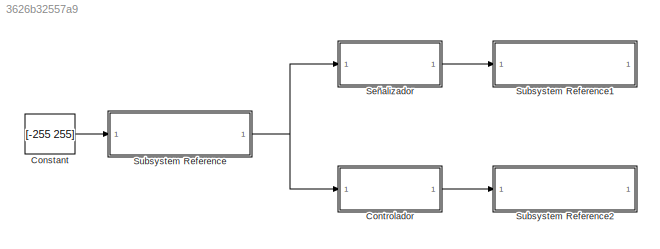
MODEL slx_3626b32557a9
KIND model
CONFIG AbsTol = auto
CONFIG EnableMultiTasking = on
CONFIG FixedStep = auto
CONFIG MaxStep = auto
CONFIG MinStep = auto
CONFIG RelTol = 1e-3
CONFIG SampleTimeConstraint = Unconstrained
CONFIG SolverName = FixedStepAuto
CONFIG StartTime = 0.0
CONFIG StopTime = inf
BLOCK [Constant] Constant
  OutDataTypeStr = int16
  Value = [-255 255]
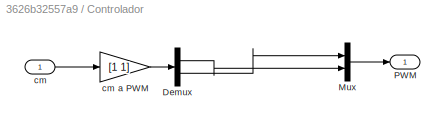
BLOCK [SubSystem] Controlador
BLOCK [Demux] Controlador/Demux
  Outputs = 2
BLOCK [Mux] Controlador/Mux
  DisplayOption = bar
  Inputs = 2
BLOCK [Outport] Controlador/PWM
BLOCK [Inport] Controlador/cm
BLOCK [Gain] Controlador/cm a PWM
  Gain = [1 1]
  OutDataTypeStr = int16
  ParamDataTypeStr = int16
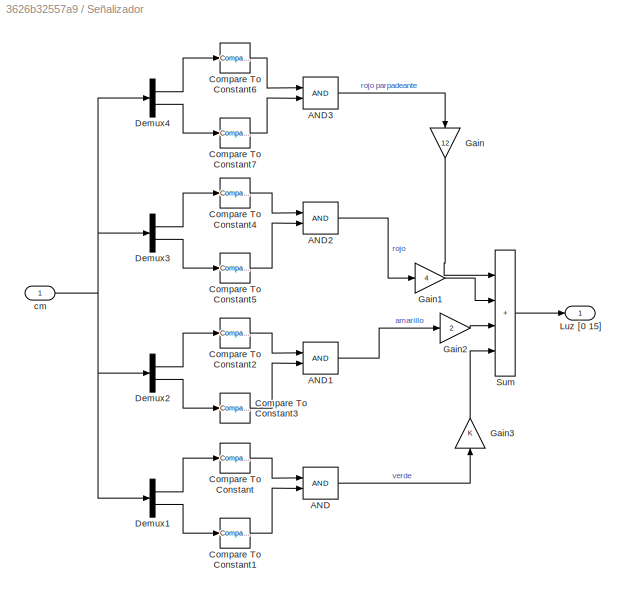
BLOCK [SubSystem] Señalizador
BLOCK [Logic] Señalizador/AND
  AllPortsSameDT = off
  IconShape = distinctive
  OutDataTypeStr = boolean
BLOCK [Logic] Señalizador/AND1
  AllPortsSameDT = off
  IconShape = distinctive
  OutDataTypeStr = boolean
BLOCK [Logic] Señalizador/AND2
  AllPortsSameDT = off
  IconShape = distinctive
  OutDataTypeStr = boolean
BLOCK [Logic] Señalizador/AND3
  AllPortsSameDT = off
  IconShape = distinctive
  OutDataTypeStr = boolean
BLOCK [Reference] Señalizador/Compare To Constant  REF=simulink/Logic and Bit
Operations/Compare
To Constant
  SourceBlock = simulink/Logic and Bit\nOperations/Compare\nTo Constant
  SourceType = Compare To Constant
BLOCK [Reference] Señalizador/Compare To Constant1  REF=simulink/Logic and Bit
Operations/Compare
To Constant
  SourceBlock = simulink/Logic and Bit\nOperations/Compare\nTo Constant
  SourceType = Compare To Constant
BLOCK [Reference] Señalizador/Compare To Constant2  REF=simulink/Logic and Bit
Operations/Compare
To Constant
  SourceBlock = simulink/Logic and Bit\nOperations/Compare\nTo Constant
  SourceType = Compare To Constant
BLOCK [Reference] Señalizador/Compare To Constant3  REF=simulink/Logic and Bit
Operations/Compare
To Constant
  SourceBlock = simulink/Logic and Bit\nOperations/Compare\nTo Constant
  SourceType = Compare To Constant
BLOCK [Reference] Señalizador/Compare To Constant4  REF=simulink/Logic and Bit
Operations/Compare
To Constant
  SourceBlock = simulink/Logic and Bit\nOperations/Compare\nTo Constant
  SourceType = Compare To Constant
BLOCK [Reference] Señalizador/Compare To Constant5  REF=simulink/Logic and Bit
Operations/Compare
To Constant
  SourceBlock = simulink/Logic and Bit\nOperations/Compare\nTo Constant
  SourceType = Compare To Constant
BLOCK [Reference] Señalizador/Compare To Constant6  REF=simulink/Logic and Bit
Operations/Compare
To Constant
  SourceBlock = simulink/Logic and Bit\nOperations/Compare\nTo Constant
  SourceType = Compare To Constant
BLOCK [Reference] Señalizador/Compare To Constant7  REF=simulink/Logic and Bit
Operations/Compare
To Constant
  SourceBlock = simulink/Logic and Bit\nOperations/Compare\nTo Constant
  SourceType = Compare To Constant
BLOCK [Demux] Señalizador/Demux1
  Outputs = 2
BLOCK [Demux] Señalizador/Demux2
  Outputs = 2
BLOCK [Demux] Señalizador/Demux3
  Outputs = 2
BLOCK [Demux] Señalizador/Demux4
  Outputs = 2
BLOCK [Gain] Señalizador/Gain
  Gain = 12
  NameLocation = left
  OutDataTypeStr = int16
  ParamDataTypeStr = int16
BLOCK [Gain] Señalizador/Gain1
  Gain = 4
  OutDataTypeStr = int16
  ParamDataTypeStr = int16
BLOCK [Gain] Señalizador/Gain2
  Gain = 2
  OutDataTypeStr = int16
  ParamDataTypeStr = int16
BLOCK [Gain] Señalizador/Gain3
  NameLocation = right
  OutDataTypeStr = int16
  ParamDataTypeStr = int16
BLOCK [Outport] Señalizador/Luz [0 15]
  OutDataTypeStr = int16
BLOCK [Sum] Señalizador/Sum
  IconShape = rectangular
  Inputs = ++++
BLOCK [Inport] Señalizador/cm
  OutDataTypeStr = int16
BLOCK [SubSystem] Subsystem Reference
  ReferencedSubsystem = Sonars
BLOCK [SubSystem] Subsystem Reference1
  ReferencedSubsystem = SubLeds
BLOCK [SubSystem] Subsystem Reference2
  ReferencedSubsystem = Motores
LINE Constant:1 -> Subsystem Reference:1
LINE Controlador/Demux:1 -> Controlador/Mux:2
LINE Controlador/Demux:2 -> Controlador/Mux:1
LINE Controlador/Mux:1 -> Controlador/PWM:1
LINE Controlador/cm a PWM:1 -> Controlador/Demux:1
LINE Controlador/cm:1 -> Controlador/cm a PWM:1
LINE Controlador:1 -> Subsystem Reference2:1
LINE Señalizador/AND1:1 -> Señalizador/Gain2:1
LINE Señalizador/AND2:1 -> Señalizador/Gain1:1
LINE Señalizador/AND3:1 -> Señalizador/Gain:1
LINE Señalizador/AND:1 -> Señalizador/Gain3:1
LINE Señalizador/Compare To Constant1:1 -> Señalizador/AND:2
LINE Señalizador/Compare To Constant2:1 -> Señalizador/AND1:1
LINE Señalizador/Compare To Constant3:1 -> Señalizador/AND1:2
LINE Señalizador/Compare To Constant4:1 -> Señalizador/AND2:1
LINE Señalizador/Compare To Constant5:1 -> Señalizador/AND2:2
LINE Señalizador/Compare To Constant6:1 -> Señalizador/AND3:1
LINE Señalizador/Compare To Constant7:1 -> Señalizador/AND3:2
LINE Señalizador/Compare To Constant:1 -> Señalizador/AND:1
LINE Señalizador/Demux1:1 -> Señalizador/Compare To Constant:1
LINE Señalizador/Demux1:2 -> Señalizador/Compare To Constant1:1
LINE Señalizador/Demux2:1 -> Señalizador/Compare To Constant2:1
LINE Señalizador/Demux2:2 -> Señalizador/Compare To Constant3:1
LINE Señalizador/Demux3:1 -> Señalizador/Compare To Constant4:1
LINE Señalizador/Demux3:2 -> Señalizador/Compare To Constant5:1
LINE Señalizador/Demux4:1 -> Señalizador/Compare To Constant6:1
LINE Señalizador/Demux4:2 -> Señalizador/Compare To Constant7:1
LINE Señalizador/Gain1:1 -> Señalizador/Sum:2
LINE Señalizador/Gain2:1 -> Señalizador/Sum:3
LINE Señalizador/Gain3:1 -> Señalizador/Sum:4
LINE Señalizador/Gain:1 -> Señalizador/Sum:1
LINE Señalizador/Sum:1 -> Señalizador/Luz [0 15]:1
NET Señalizador/cm:1 -> Señalizador/Demux1:1, Señalizador/Demux2:1, Señalizador/Demux3:1, Señalizador/Demux4:1
LINE Señalizador:1 -> Subsystem Reference1:1
NET Subsystem Reference:1 -> Controlador:1, Señalizador:1
note: NET lines group one-source signal fan-out (src -> all destinations, sorted); 1:1 wires keep LINE
